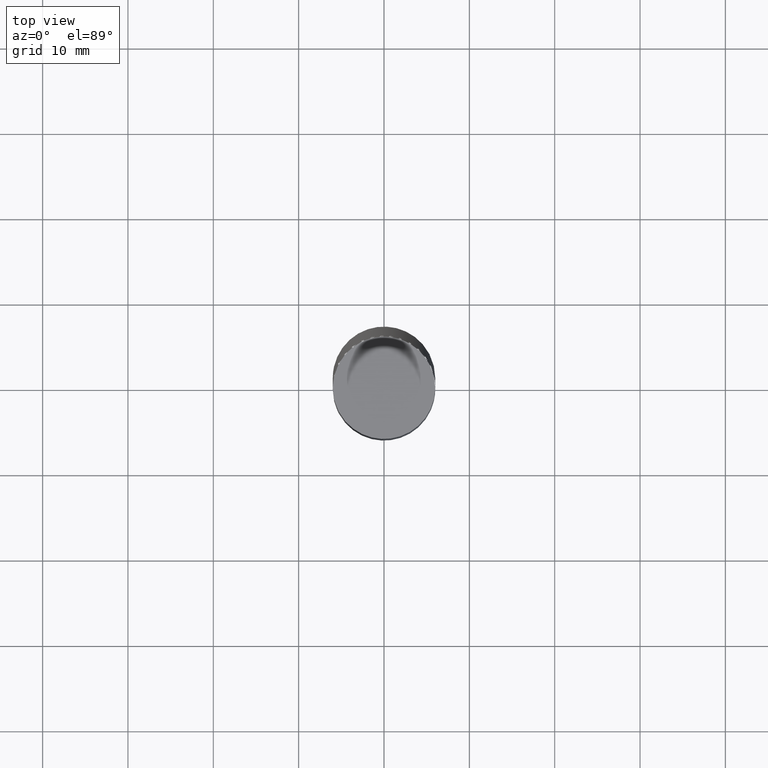
[diagram: clean part render]
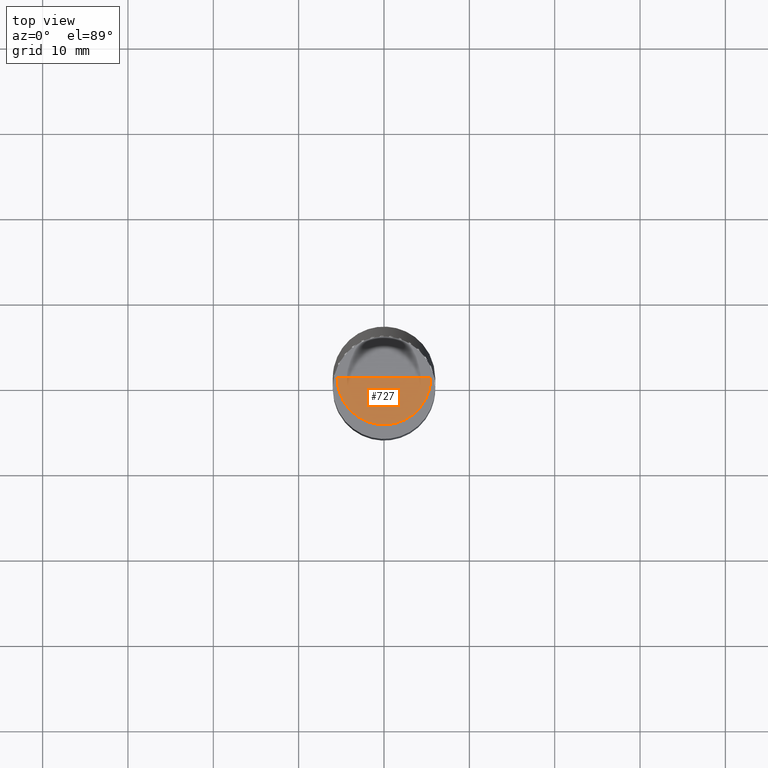
[diagram: same view with one face highlighted and labeled with its STEP entity id]
A machine part, top view. The second image highlights one B-rep face of the part: STEP entity #727.
In plain terms, the highlighted face is a freeform B-spline surface patch.
Its self-contained STEP definition (entity closure, byte-faithful):
#416=CARTESIAN_POINT('',(5.5,0.0,62.0));
#420=CARTESIAN_POINT('',(-5.5,0.0,62.0));
#421=CARTESIAN_POINT('',(0.0,0.0,62.0));
#428=CARTESIAN_POINT('',(-5.5,-5.5,62.0));
#429=CARTESIAN_POINT('',(0.0,-5.5,62.0));
#430=CARTESIAN_POINT('',(5.5,-5.5,62.0));
#712=(
BOUNDED_SURFACE()
B_SPLINE_SURFACE(1,2,(
(#420,#428,#429,#430,#416),
(#421,#421,#421,#421,#421)
), .UNSPECIFIED.,.F.,.F.,.F.)
B_SPLINE_SURFACE_WITH_KNOTS((2,2),(3,2,3),(
0.0,1.0),(
0.0,0.5,1.0), .UNSPECIFIED.)
GEOMETRIC_REPRESENTATION_ITEM()
RATIONAL_B_SPLINE_SURFACE(((1.0,0.707106781187,1.0,0.707106781187,1.0),
(1.0,0.707106781187,1.0,0.707106781187,1.0)
))
REPRESENTATION_ITEM('')
SURFACE()
);
#713=(
BOUNDED_CURVE()
B_SPLINE_CURVE(2,(#416,#430,#429,#428,#420),.UNSPECIFIED.,.F.,.F.)
B_SPLINE_CURVE_WITH_KNOTS((3,2,3),
(0.0,0.5,1.0),.UNSPECIFIED.)
CURVE()
GEOMETRIC_REPRESENTATION_ITEM()
RATIONAL_B_SPLINE_CURVE((1.0,0.707106781187,1.0,0.707106781187,1.0))
REPRESENTATION_ITEM('')
);
#714=(
BOUNDED_CURVE()
B_SPLINE_CURVE(1,(#420,#421),.UNSPECIFIED.,.F.,.F.)
B_SPLINE_CURVE_WITH_KNOTS((2,2),
(0.0,1.0),.UNSPECIFIED.)
CURVE()
GEOMETRIC_REPRESENTATION_ITEM()
RATIONAL_B_SPLINE_CURVE((1.0,1.0))
REPRESENTATION_ITEM('')
);
#715=(
BOUNDED_CURVE()
B_SPLINE_CURVE(1,(#421,#416),.UNSPECIFIED.,.F.,.F.)
B_SPLINE_CURVE_WITH_KNOTS((2,2),
(0.0,1.0),.UNSPECIFIED.)
CURVE()
GEOMETRIC_REPRESENTATION_ITEM()
RATIONAL_B_SPLINE_CURVE((1.0,1.0))
REPRESENTATION_ITEM('')
);
#716=VERTEX_POINT('',#416);
#717=VERTEX_POINT('',#420);
#718=VERTEX_POINT('',#421);
#719=EDGE_CURVE('',#716,#717,#713,.T.);
#720=EDGE_CURVE('',#717,#718,#714,.T.);
#721=EDGE_CURVE('',#718,#716,#715,.T.);
#722=ORIENTED_EDGE('',*,*,#719,.T.);
#723=ORIENTED_EDGE('',*,*,#720,.T.);
#724=ORIENTED_EDGE('',*,*,#721,.T.);
#725=EDGE_LOOP('',(#722,#723,#724));
#726=FACE_OUTER_BOUND('',#725,.T.);
#727=ADVANCED_FACE('',(#726),#712,.T.);